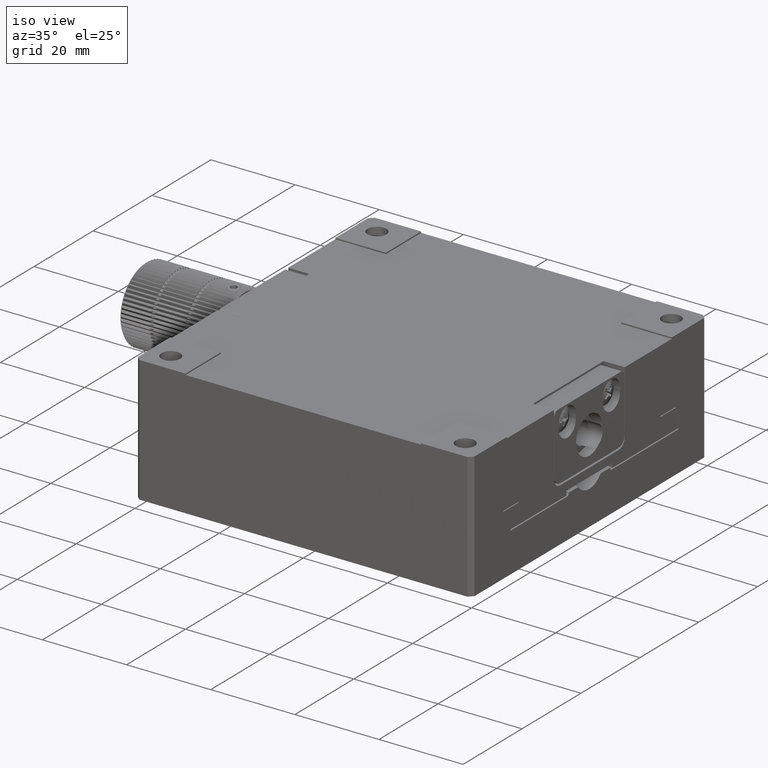
[diagram: clean part render]
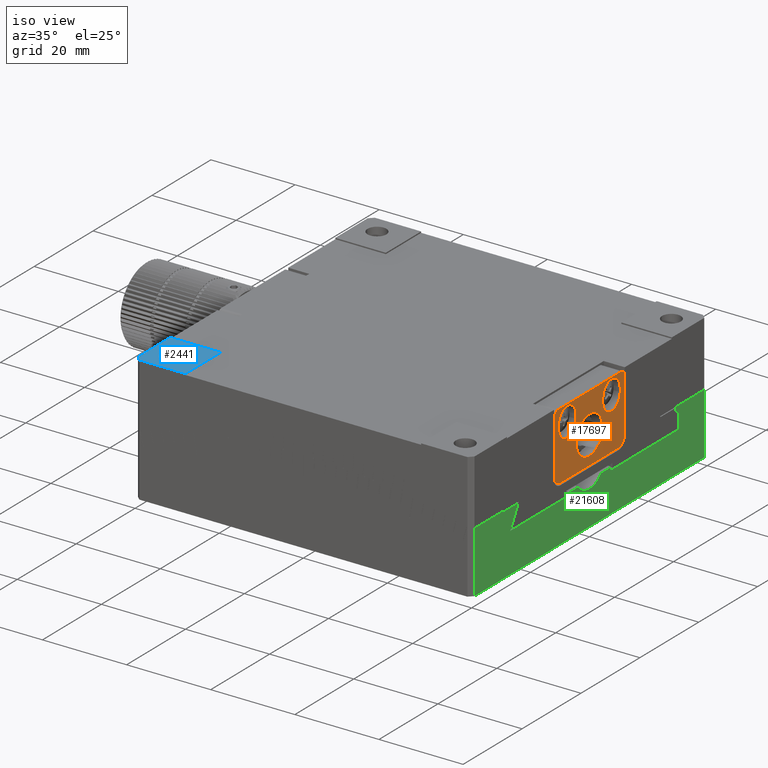
[diagram: same view with three faces highlighted in distinct colors, each labeled with its STEP entity id]
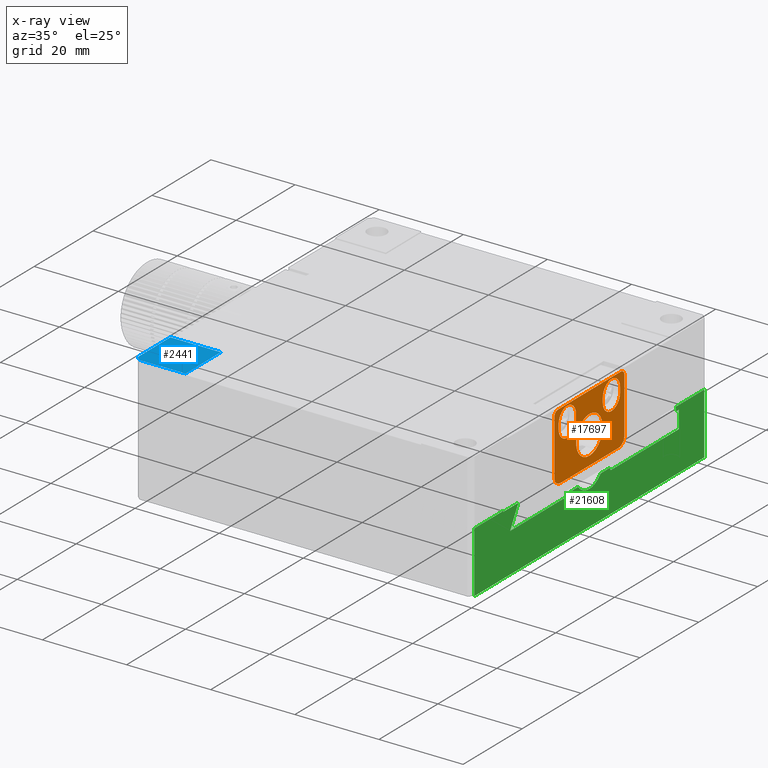
[diagram: x-ray of the same camera — body ghosted, the three highlighted faces saturated]
A machine part, iso view with three faces highlighted in distinct colors.
The next image is the same camera in x-ray (body ghosted, the three faces saturated) — at least one of them is partly hidden behind the body in this view.
Their STEP definitions:

[orange] entity #17697 — the highlighted planar face has unit normal (-1, 0, -0).
#243 = VERTEX_POINT ( 'NONE', #15264 ) ;
#769 = DIRECTION ( 'NONE',  ( -1.000000000000000000, 0.000000000000000000, 0.000000000000000000 ) ) ;
#2941 = VERTEX_POINT ( 'NONE', #73153 ) ;
#3733 = CARTESIAN_POINT ( 'NONE',  ( 40.00000000000003553, -11.90000000000000568, 159.2500000000000000 ) ) ;
#5044 = CARTESIAN_POINT ( 'NONE',  ( 40.00000000000003553, 11.90000000000000213, 158.0499999999999829 ) ) ;
#6259 = DIRECTION ( 'NONE',  ( -0.000000000000000000, -4.614364446098309829E-16, -1.000000000000000000 ) ) ;
#6341 = CARTESIAN_POINT ( 'NONE',  ( 40.00000000000003553, 4.549999999999999822, 155.9500000000000455 ) ) ;
#6952 = DIRECTION ( 'NONE',  ( 0.000000000000000000, 0.000000000000000000, 1.000000000000000000 ) ) ;
#7254 = VERTEX_POINT ( 'NONE', #20465 ) ;
#8002 = CIRCLE ( 'NONE', #31765, 2.950000000000008171 ) ;
#8535 = CARTESIAN_POINT ( 'NONE',  ( 40.00000000000003553, 11.90000000000000213, 143.1500000000000057 ) ) ;
#9416 = CARTESIAN_POINT ( 'NONE',  ( 40.00000000000003553, -4.550000000000003375, 154.9500000000000455 ) ) ;
#10006 = VECTOR ( 'NONE', #44985, 1000.000000000000000 ) ;
#10093 = ORIENTED_EDGE ( 'NONE', *, *, #47680, .T. ) ;
#10255 = EDGE_CURVE ( 'NONE', #2941, #243, #15134, .T. ) ;
#10426 = LINE ( 'NONE', #29841, #42830 ) ;
#11590 = VERTEX_POINT ( 'NONE', #23662 ) ;
#12059 = CARTESIAN_POINT ( 'NONE',  ( 40.00000000000003553, 10.45000000000000107, 154.9500000000000455 ) ) ;
#12080 = CARTESIAN_POINT ( 'NONE',  ( 40.00000000000003553, -10.70000000000000284, 158.0499999999999829 ) ) ;
#12578 = DIRECTION ( 'NONE',  ( -0.000000000000000000, 2.775557561562890735E-17, 1.000000000000000000 ) ) ;
#12872 = DIRECTION ( 'NONE',  ( -0.000000000000000000, 2.775557561562890735E-17, 1.000000000000000000 ) ) ;
#14243 = ORIENTED_EDGE ( 'NONE', *, *, #30781, .F. ) ;
#14854 = ORIENTED_EDGE ( 'NONE', *, *, #74865, .F. ) ;
#15081 = AXIS2_PLACEMENT_3D ( 'NONE', #73401, #53610, #36319 ) ;
#15134 = LINE ( 'NONE', #8535, #19595 ) ;
#15141 = AXIS2_PLACEMENT_3D ( 'NONE', #77445, #77831, #22140 ) ;
#15150 = CARTESIAN_POINT ( 'NONE',  ( 40.00000000000003553, -10.45000000000000107, 154.9500000000000455 ) ) ;
#15264 = CARTESIAN_POINT ( 'NONE',  ( 40.00000000000003553, 9.900000000000002132, 143.1500000000000057 ) ) ;
#16710 = DIRECTION ( 'NONE',  ( -1.000000000000000000, 0.000000000000000000, 0.000000000000000000 ) ) ;
#17520 = CARTESIAN_POINT ( 'NONE',  ( 40.00000000000003553, 9.900000000000002132, 145.1500000000000057 ) ) ;
#17697 = ADVANCED_FACE ( 'NONE', ( #39653, #31866, #45403, #44599 ), #69752, .F. ) ;
#18854 = CARTESIAN_POINT ( 'NONE',  ( 40.00000000000003553, 10.45000000000000284, 154.9500000000000455 ) ) ;
#19595 = VECTOR ( 'NONE', #33719, 1000.000000000000000 ) ;
#19836 = CARTESIAN_POINT ( 'NONE',  ( 40.00000000000003553, -10.45000000000000284, 155.9500000000000455 ) ) ;
#20465 = CARTESIAN_POINT ( 'NONE',  ( 40.00000000000003553, 11.90000000000000213, 145.1500000000000057 ) ) ;
#20931 = ORIENTED_EDGE ( 'NONE', *, *, #56638, .F. ) ;
#20954 = CARTESIAN_POINT ( 'NONE',  ( 40.00000000000003553, -9.900000000000000355, 145.1500000000000057 ) ) ;
#21354 = VERTEX_POINT ( 'NONE', #5044 ) ;
#22140 = DIRECTION ( 'NONE',  ( 0.000000000000000000, 0.000000000000000000, 1.000000000000000000 ) ) ;
#23011 = AXIS2_PLACEMENT_3D ( 'NONE', #32755, #57048, #69429 ) ;
#23652 = DIRECTION ( 'NONE',  ( 1.000000000000000000, 0.000000000000000000, 0.000000000000000000 ) ) ;
#23662 = CARTESIAN_POINT ( 'NONE',  ( 40.00000000000003553, -10.70000000000000284, 159.2500000000000000 ) ) ;
#24208 = AXIS2_PLACEMENT_3D ( 'NONE', #26881, #64372, #51177 ) ;
#24215 = EDGE_LOOP ( 'NONE', ( #14854, #77778, #32258, #39605 ) ) ;
#24927 = ORIENTED_EDGE ( 'NONE', *, *, #69112, .F. ) ;
#24962 = LINE ( 'NONE', #38161, #33203 ) ;
#25645 = CARTESIAN_POINT ( 'NONE',  ( 40.00000000000003553, 0.000000000000000000, 154.2500000000000000 ) ) ;
#25982 = VECTOR ( 'NONE', #12872, 1000.000000000000000 ) ;
#26047 = LINE ( 'NONE', #19836, #10006 ) ;
#26247 = EDGE_CURVE ( 'NONE', #35239, #11590, #10426, .T. ) ;
#26583 = CARTESIAN_POINT ( 'NONE',  ( 40.00000000000003553, 10.70000000000000284, 158.0499999999999829 ) ) ;
#26881 = CARTESIAN_POINT ( 'NONE',  ( 40.00000000000003553, 11.90000000000000213, 159.2500000000000000 ) ) ;
#27295 = VERTEX_POINT ( 'NONE', #25645 ) ;
#28060 = VERTEX_POINT ( 'NONE', #67758 ) ;
#28615 = DIRECTION ( 'NONE',  ( -0.000000000000000000, -1.000000000000000000, 2.775557561562890735E-17 ) ) ;
#29841 = CARTESIAN_POINT ( 'NONE',  ( 40.00000000000003553, 11.90000000000000213, 159.2500000000000000 ) ) ;
#30035 = CARTESIAN_POINT ( 'NONE',  ( 40.00000000000003553, -10.45000000000000107, 155.9500000000000455 ) ) ;
#30259 = ORIENTED_EDGE ( 'NONE', *, *, #32666, .F. ) ;
#30781 = EDGE_CURVE ( 'NONE', #44547, #11590, #34230, .T. ) ;
#31517 = DIRECTION ( 'NONE',  ( 0.000000000000000000, 0.000000000000000000, -1.000000000000000000 ) ) ;
#31765 = AXIS2_PLACEMENT_3D ( 'NONE', #80144, #23652, #48775 ) ;
#31866 = FACE_BOUND ( 'NONE', #24215, .T. ) ;
#32037 = AXIS2_PLACEMENT_3D ( 'NONE', #17520, #16710, #35280 ) ;
#32258 = ORIENTED_EDGE ( 'NONE', *, *, #43294, .F. ) ;
#32333 = EDGE_LOOP ( 'NONE', ( #62795, #76719, #30259, #10093 ) ) ;
#32666 = EDGE_CURVE ( 'NONE', #28060, #49545, #8002, .T. ) ;
#32755 = CARTESIAN_POINT ( 'NONE',  ( 40.00000000000003553, 7.500000000000002665, 154.9500000000000455 ) ) ;
#33203 = VECTOR ( 'NONE', #12578, 1000.000000000000000 ) ;
#33589 = CIRCLE ( 'NONE', #23011, 2.950000000000008171 ) ;
#33719 = DIRECTION ( 'NONE',  ( -0.000000000000000000, 1.000000000000000000, -2.775557561562890735E-17 ) ) ;
#33975 = EDGE_CURVE ( 'NONE', #43439, #61247, #68535, .T. ) ;
#34230 = CIRCLE ( 'NONE', #56617, 1.200000000000006617 ) ;
#34353 = ORIENTED_EDGE ( 'NONE', *, *, #26247, .T. ) ;
#34957 = EDGE_CURVE ( 'NONE', #64550, #55461, #24962, .T. ) ;
#35239 = VERTEX_POINT ( 'NONE', #56084 ) ;
#35280 = DIRECTION ( 'NONE',  ( 0.000000000000000000, 0.000000000000000000, 1.000000000000000000 ) ) ;
#36175 = AXIS2_PLACEMENT_3D ( 'NONE', #20954, #769, #6952 ) ;
#36319 = DIRECTION ( 'NONE',  ( 0.000000000000000000, 0.000000000000000000, -1.000000000000000000 ) ) ;
#37192 = VERTEX_POINT ( 'NONE', #47421 ) ;
#37252 = DIRECTION ( 'NONE',  ( -1.000000000000000000, 0.000000000000000000, 0.000000000000000000 ) ) ;
#37283 = CARTESIAN_POINT ( 'NONE',  ( 40.00000000000003553, -7.500000000000002665, 154.9500000000000455 ) ) ;
#37403 = CIRCLE ( 'NONE', #36175, 2.000000000000001776 ) ;
#37567 = EDGE_LOOP ( 'NONE', ( #14243, #50100, #24927, #64419, #20931, #45571, #65351, #34353 ) ) ;
#38161 = CARTESIAN_POINT ( 'NONE',  ( 40.00000000000003553, 4.549999999999999822, 155.9500000000000455 ) ) ;
#39296 = EDGE_CURVE ( 'NONE', #35239, #21354, #54376, .T. ) ;
#39605 = ORIENTED_EDGE ( 'NONE', *, *, #33975, .T. ) ;
#39653 = FACE_OUTER_BOUND ( 'NONE', #37567, .T. ) ;
#40976 = DIRECTION ( 'NONE',  ( 0.000000000000000000, 0.000000000000000000, 1.000000000000000000 ) ) ;
#41303 = LINE ( 'NONE', #3733, #67364 ) ;
#42830 = VECTOR ( 'NONE', #28615, 1000.000000000000000 ) ;
#43294 = EDGE_CURVE ( 'NONE', #43439, #55461, #57220, .T. ) ;
#43439 = VERTEX_POINT ( 'NONE', #51088 ) ;
#44547 = VERTEX_POINT ( 'NONE', #55153 ) ;
#44599 = FACE_BOUND ( 'NONE', #66436, .T. ) ;
#44985 = DIRECTION ( 'NONE',  ( -0.000000000000000000, -3.441691376337983698E-15, 1.000000000000000000 ) ) ;
#45403 = FACE_BOUND ( 'NONE', #32333, .T. ) ;
#45571 = ORIENTED_EDGE ( 'NONE', *, *, #65516, .T. ) ;
#46863 = ORIENTED_EDGE ( 'NONE', *, *, #70105, .F. ) ;
#47421 = CARTESIAN_POINT ( 'NONE',  ( 40.00000000000003553, -11.90000000000000391, 145.1500000000000057 ) ) ;
#47680 = EDGE_CURVE ( 'NONE', #28060, #72415, #53527, .T. ) ;
#48774 = VECTOR ( 'NONE', #6259, 1000.000000000000000 ) ;
#48775 = DIRECTION ( 'NONE',  ( 0.000000000000000000, 0.000000000000000000, -1.000000000000000000 ) ) ;
#49545 = VERTEX_POINT ( 'NONE', #30035 ) ;
#49966 = CARTESIAN_POINT ( 'NONE',  ( 40.00000000000003553, 11.90000000000000213, 159.2500000000000000 ) ) ;
#50100 = ORIENTED_EDGE ( 'NONE', *, *, #80901, .T. ) ;
#50363 = LINE ( 'NONE', #49966, #25982 ) ;
#50642 = VECTOR ( 'NONE', #78698, 1000.000000000000000 ) ;
#50665 = CIRCLE ( 'NONE', #15141, 4.500000000000003553 ) ;
#51088 = CARTESIAN_POINT ( 'NONE',  ( 40.00000000000003553, 10.45000000000000284, 155.9500000000000455 ) ) ;
#51177 = DIRECTION ( 'NONE',  ( -0.000000000000000000, 0.000000000000000000, 1.000000000000000000 ) ) ;
#51478 = CARTESIAN_POINT ( 'NONE',  ( 40.00000000000003553, 4.549999999999999822, 154.9500000000000455 ) ) ;
#51712 = DIRECTION ( 'NONE',  ( -1.000000000000000000, 0.000000000000000000, 0.000000000000000000 ) ) ;
#53527 = LINE ( 'NONE', #9416, #50642 ) ;
#53610 = DIRECTION ( 'NONE',  ( 1.000000000000000000, 0.000000000000000000, 0.000000000000000000 ) ) ;
#54376 = CIRCLE ( 'NONE', #72816, 1.200000000000006617 ) ;
#55153 = CARTESIAN_POINT ( 'NONE',  ( 40.00000000000003553, -11.90000000000000391, 158.0499999999999829 ) ) ;
#55461 = VERTEX_POINT ( 'NONE', #6341 ) ;
#56084 = CARTESIAN_POINT ( 'NONE',  ( 40.00000000000003553, 10.70000000000000284, 159.2500000000000000 ) ) ;
#56186 = DIRECTION ( 'NONE',  ( 0.000000000000000000, 0.000000000000000000, 1.000000000000000000 ) ) ;
#56617 = AXIS2_PLACEMENT_3D ( 'NONE', #12080, #37252, #56186 ) ;
#56638 = EDGE_CURVE ( 'NONE', #7254, #243, #71485, .T. ) ;
#57048 = DIRECTION ( 'NONE',  ( 1.000000000000000000, 0.000000000000000000, 0.000000000000000000 ) ) ;
#57220 = CIRCLE ( 'NONE', #15081, 2.950000000000008171 ) ;
#58520 = AXIS2_PLACEMENT_3D ( 'NONE', #37283, #69005, #31517 ) ;
#59849 = DIRECTION ( 'NONE',  ( -0.000000000000000000, -2.775557561562890735E-17, -1.000000000000000000 ) ) ;
#61247 = VERTEX_POINT ( 'NONE', #18854 ) ;
#62126 = CARTESIAN_POINT ( 'NONE',  ( 40.00000000000003553, -4.550000000000003375, 154.9500000000000455 ) ) ;
#62510 = CIRCLE ( 'NONE', #58520, 2.950000000000008171 ) ;
#62795 = ORIENTED_EDGE ( 'NONE', *, *, #74260, .F. ) ;
#64095 = EDGE_CURVE ( 'NONE', #80460, #49545, #26047, .T. ) ;
#64372 = DIRECTION ( 'NONE',  ( -1.000000000000000000, 0.000000000000000000, -0.000000000000000000 ) ) ;
#64419 = ORIENTED_EDGE ( 'NONE', *, *, #10255, .T. ) ;
#64550 = VERTEX_POINT ( 'NONE', #51478 ) ;
#65351 = ORIENTED_EDGE ( 'NONE', *, *, #39296, .F. ) ;
#65516 = EDGE_CURVE ( 'NONE', #7254, #21354, #50363, .T. ) ;
#66436 = EDGE_LOOP ( 'NONE', ( #46863 ) ) ;
#67364 = VECTOR ( 'NONE', #59849, 1000.000000000000000 ) ;
#67758 = CARTESIAN_POINT ( 'NONE',  ( 40.00000000000003553, -4.550000000000003375, 155.9500000000000455 ) ) ;
#68535 = LINE ( 'NONE', #12059, #48774 ) ;
#69005 = DIRECTION ( 'NONE',  ( 1.000000000000000000, 0.000000000000000000, 0.000000000000000000 ) ) ;
#69112 = EDGE_CURVE ( 'NONE', #2941, #37192, #37403, .T. ) ;
#69429 = DIRECTION ( 'NONE',  ( 0.000000000000000000, 0.000000000000000000, -1.000000000000000000 ) ) ;
#69752 = PLANE ( 'NONE',  #24208 ) ;
#70105 = EDGE_CURVE ( 'NONE', #27295, #27295, #50665, .T. ) ;
#71485 = CIRCLE ( 'NONE', #32037, 2.000000000000001776 ) ;
#72415 = VERTEX_POINT ( 'NONE', #62126 ) ;
#72816 = AXIS2_PLACEMENT_3D ( 'NONE', #26583, #51712, #40976 ) ;
#73153 = CARTESIAN_POINT ( 'NONE',  ( 40.00000000000003553, -9.900000000000000355, 143.1500000000000057 ) ) ;
#73401 = CARTESIAN_POINT ( 'NONE',  ( 40.00000000000003553, 7.500000000000002665, 155.9500000000000455 ) ) ;
#74260 = EDGE_CURVE ( 'NONE', #80460, #72415, #62510, .T. ) ;
#74865 = EDGE_CURVE ( 'NONE', #64550, #61247, #33589, .T. ) ;
#76719 = ORIENTED_EDGE ( 'NONE', *, *, #64095, .T. ) ;
#77445 = CARTESIAN_POINT ( 'NONE',  ( 40.00000000000003553, 0.000000000000000000, 149.7500000000000000 ) ) ;
#77778 = ORIENTED_EDGE ( 'NONE', *, *, #34957, .T. ) ;
#77831 = DIRECTION ( 'NONE',  ( 1.000000000000000000, -0.000000000000000000, -0.000000000000000000 ) ) ;
#78698 = DIRECTION ( 'NONE',  ( -0.000000000000000000, -2.775557561562890735E-17, -1.000000000000000000 ) ) ;
#80144 = CARTESIAN_POINT ( 'NONE',  ( 40.00000000000003553, -7.500000000000002665, 155.9500000000000455 ) ) ;
#80460 = VERTEX_POINT ( 'NONE', #15150 ) ;
#80901 = EDGE_CURVE ( 'NONE', #44547, #37192, #41303, .T. ) ;

[blue] entity #2441 — the highlighted planar face has unit normal (0, 0, 1).
#2441 = ADVANCED_FACE ( 'NONE', ( #76292, #32633 ), #26397, .T. ) ;
#2473 = CARTESIAN_POINT ( 'NONE',  ( -40.00000000000000000, -39.99999999999997868, 160.0000000000000284 ) ) ;
#2895 = EDGE_CURVE ( 'NONE', #71632, #6200, #10871, .T. ) ;
#4039 = DIRECTION ( 'NONE',  ( 1.000000000000000000, 0.000000000000000000, -0.000000000000000000 ) ) ;
#5675 = EDGE_CURVE ( 'NONE', #38965, #38965, #8595, .T. ) ;
#6200 = VERTEX_POINT ( 'NONE', #62609 ) ;
#8595 = CIRCLE ( 'NONE', #68052, 2.249999999999995115 ) ;
#8724 = CARTESIAN_POINT ( 'NONE',  ( -40.00000000000000000, -38.99999999999995737, 160.0000000000000284 ) ) ;
#10736 = DIRECTION ( 'NONE',  ( -0.000000000000000000, -0.000000000000000000, -1.000000000000000000 ) ) ;
#10871 = LINE ( 'NONE', #54162, #39817 ) ;
#12107 = VECTOR ( 'NONE', #21461, 1000.000000000000000 ) ;
#14199 = EDGE_CURVE ( 'NONE', #44747, #71632, #64006, .T. ) ;
#14776 = CARTESIAN_POINT ( 'NONE',  ( -40.00000000000000000, -38.99999999999995737, 160.0000000000000284 ) ) ;
#14909 = LINE ( 'NONE', #8724, #30014 ) ;
#16102 = CARTESIAN_POINT ( 'NONE',  ( -40.00000000000000000, -27.99999999999999645, 160.0000000000000284 ) ) ;
#16266 = DIRECTION ( 'NONE',  ( -1.000000000000000000, -0.000000000000000000, -0.000000000000000000 ) ) ;
#16465 = ORIENTED_EDGE ( 'NONE', *, *, #71750, .F. ) ;
#16510 = DIRECTION ( 'NONE',  ( 1.000000000000000000, 0.000000000000000000, -0.000000000000000000 ) ) ;
#17425 = AXIS2_PLACEMENT_3D ( 'NONE', #45350, #28039, #4039 ) ;
#20289 = DIRECTION ( 'NONE',  ( 5.782411586589361583E-16, -1.000000000000000000, -0.000000000000000000 ) ) ;
#21461 = DIRECTION ( 'NONE',  ( 0.000000000000000000, 1.000000000000000000, -0.000000000000000000 ) ) ;
#26397 = PLANE ( 'NONE',  #17425 ) ;
#28039 = DIRECTION ( 'NONE',  ( 0.000000000000000000, 0.000000000000000000, 1.000000000000000000 ) ) ;
#30014 = VECTOR ( 'NONE', #59014, 1000.000000000000114 ) ;
#32633 = FACE_BOUND ( 'NONE', #44746, .T. ) ;
#34258 = LINE ( 'NONE', #2473, #12107 ) ;
#36577 = EDGE_LOOP ( 'NONE', ( #46784, #16465, #45341, #55594, #67320 ) ) ;
#38929 = VERTEX_POINT ( 'NONE', #39867 ) ;
#38965 = VERTEX_POINT ( 'NONE', #45908 ) ;
#39817 = VECTOR ( 'NONE', #16266, 1000.000000000000000 ) ;
#39867 = CARTESIAN_POINT ( 'NONE',  ( -40.00000000000000000, -27.99999999999999645, 160.0000000000000284 ) ) ;
#41709 = VERTEX_POINT ( 'NONE', #14776 ) ;
#44746 = EDGE_LOOP ( 'NONE', ( #76819 ) ) ;
#44747 = VERTEX_POINT ( 'NONE', #53037 ) ;
#45341 = ORIENTED_EDGE ( 'NONE', *, *, #62783, .F. ) ;
#45350 = CARTESIAN_POINT ( 'NONE',  ( -40.00000000000000000, -39.99999999999997868, 160.0000000000000284 ) ) ;
#45908 = CARTESIAN_POINT ( 'NONE',  ( -37.25000000000000711, -35.00000000000000000, 160.0000000000000568 ) ) ;
#46428 = VECTOR ( 'NONE', #16510, 1000.000000000000000 ) ;
#46784 = ORIENTED_EDGE ( 'NONE', *, *, #14199, .F. ) ;
#50273 = CARTESIAN_POINT ( 'NONE',  ( -35.00000000000000711, -35.00000000000000000, 160.0000000000000568 ) ) ;
#50813 = CARTESIAN_POINT ( 'NONE',  ( -27.99999999999999645, -39.99999999999998579, 160.0000000000000284 ) ) ;
#53037 = CARTESIAN_POINT ( 'NONE',  ( -28.00000000000000711, -27.99999999999999645, 160.0000000000000284 ) ) ;
#54162 = CARTESIAN_POINT ( 'NONE',  ( 0.000000000000000000, -39.99999999999997158, 160.0000000000000568 ) ) ;
#54859 = EDGE_CURVE ( 'NONE', #41709, #6200, #14909, .T. ) ;
#55594 = ORIENTED_EDGE ( 'NONE', *, *, #54859, .T. ) ;
#56074 = DIRECTION ( 'NONE',  ( -1.000000000000000000, 0.000000000000000000, 0.000000000000000000 ) ) ;
#58118 = VECTOR ( 'NONE', #20289, 1000.000000000000000 ) ;
#59014 = DIRECTION ( 'NONE',  ( 0.7071067811865451302, -0.7071067811865500152, 0.000000000000000000 ) ) ;
#62609 = CARTESIAN_POINT ( 'NONE',  ( -38.99999999999998579, -39.99999999999997868, 160.0000000000000284 ) ) ;
#62783 = EDGE_CURVE ( 'NONE', #41709, #38929, #34258, .T. ) ;
#64006 = LINE ( 'NONE', #50813, #58118 ) ;
#64363 = CARTESIAN_POINT ( 'NONE',  ( -27.99999999999999645, -39.99999999999997868, 160.0000000000000284 ) ) ;
#67320 = ORIENTED_EDGE ( 'NONE', *, *, #2895, .F. ) ;
#68052 = AXIS2_PLACEMENT_3D ( 'NONE', #50273, #10736, #56074 ) ;
#71632 = VERTEX_POINT ( 'NONE', #64363 ) ;
#71750 = EDGE_CURVE ( 'NONE', #38929, #44747, #80003, .T. ) ;
#76292 = FACE_OUTER_BOUND ( 'NONE', #36577, .T. ) ;
#76819 = ORIENTED_EDGE ( 'NONE', *, *, #5675, .T. ) ;
#80003 = LINE ( 'NONE', #16102, #46428 ) ;

[green] entity #21608 — the highlighted planar face has unit normal (1, -0, 0).
#144 = CARTESIAN_POINT ( 'NONE',  ( 39.99999999999997158, 38.99999999999997158, 155.0000000000000853 ) ) ;
#250 = B_SPLINE_CURVE_WITH_KNOTS ( 'NONE', 3,
 ( #21304, #28326, #15540, #65790, #3128, #78197, #33319, #14722, #46441, #46843, #8947, #58020, #71607, #64611, #2722, #39896, #58437, #15129 ),
 .UNSPECIFIED., .F., .F.,
 ( 4, 2, 2, 2, 2, 2, 2, 2, 4 ),
 ( -0.004394666948832578676, -0.003296143860405708996, -0.002197620771978839749, -0.001099097683551969636, -5.745951250990879999E-07, 0.001097948493301772327, 0.002196471581728642875, 0.003294994670155513422, 0.004393517758582383970 ),
 .UNSPECIFIED. ) ;
#823 = CARTESIAN_POINT ( 'NONE',  ( 39.99999999999993605, 7.500000000000000000, 139.3735986476636697 ) ) ;
#1183 = LINE ( 'NONE', #81227, #81338 ) ;
#1344 = LINE ( 'NONE', #144, #16891 ) ;
#2379 = CARTESIAN_POINT ( 'NONE',  ( 39.99999999999997158, -7.365139774430703667, 139.3735986476635276 ) ) ;
#2722 = CARTESIAN_POINT ( 'NONE',  ( 39.99999999999992895, -2.771501095558436933, 138.9807267235426878 ) ) ;
#3128 = CARTESIAN_POINT ( 'NONE',  ( 40.00000000000000000, 2.464756184722431964, 138.7851955642208281 ) ) ;
#3707 = CARTESIAN_POINT ( 'NONE',  ( 39.99999999999997158, 38.99999999999997158, 144.5683229480095804 ) ) ;
#3750 = ORIENTED_EDGE ( 'NONE', *, *, #71326, .T. ) ;
#4190 = VERTEX_POINT ( 'NONE', #44791 ) ;
#4695 = VECTOR ( 'NONE', #75783, 1000.000000000000000 ) ;
#5446 = LINE ( 'NONE', #30237, #34814 ) ;
#6074 = EDGE_CURVE ( 'NONE', #63316, #55485, #9928, .T. ) ;
#6714 = VERTEX_POINT ( 'NONE', #28460 ) ;
#6773 = CARTESIAN_POINT ( 'NONE',  ( 39.99999999999997158, -40.00000000000004263, 139.9977142670551018 ) ) ;
#8156 = CARTESIAN_POINT ( 'NONE',  ( 39.99999999999997158, -24.20000000000000639, 144.2088657175621904 ) ) ;
#8947 = CARTESIAN_POINT ( 'NONE',  ( 39.99999999999995026, -0.7351958295581382252, 138.1672213096129269 ) ) ;
#9005 = LINE ( 'NONE', #52291, #33538 ) ;
#9131 = PLANE ( 'NONE',  #47813 ) ;
#9253 = EDGE_CURVE ( 'NONE', #51031, #47156, #1344, .T. ) ;
#9301 = LINE ( 'NONE', #54619, #52011 ) ;
#9928 = LINE ( 'NONE', #72594, #12664 ) ;
#10009 = CARTESIAN_POINT ( 'NONE',  ( 39.99999999999997158, -40.00000000000004263, 139.3735986476636413 ) ) ;
#10085 = EDGE_CURVE ( 'NONE', #63541, #53574, #44435, .T. ) ;
#10863 = ORIENTED_EDGE ( 'NONE', *, *, #20087, .T. ) ;
#11660 = DIRECTION ( 'NONE',  ( -0.000000000000000000, -1.000000000000000000, -0.000000000000000000 ) ) ;
#12031 = DIRECTION ( 'NONE',  ( -0.000000000000000000, -1.000000000000000000, -0.000000000000000000 ) ) ;
#12664 = VECTOR ( 'NONE', #35511, 1000.000000000000000 ) ;
#13514 = DIRECTION ( 'NONE',  ( -0.000000000000000000, 0.000000000000000000, -1.000000000000000000 ) ) ;
#13544 = EDGE_CURVE ( 'NONE', #71869, #71653, #250, .T. ) ;
#13553 = VERTEX_POINT ( 'NONE', #70810 ) ;
#13630 = ORIENTED_EDGE ( 'NONE', *, *, #58556, .T. ) ;
#14690 = DIRECTION ( 'NONE',  ( 1.972152263052529514E-31, 0.000000000000000000, -1.000000000000000000 ) ) ;
#14722 = CARTESIAN_POINT ( 'NONE',  ( 40.00000000000000711, 0.7404985546688707121, 138.1677551223680780 ) ) ;
#15129 = CARTESIAN_POINT ( 'NONE',  ( 39.99999999999997158, -3.841874542459704056, 139.9977142670551018 ) ) ;
#15540 = CARTESIAN_POINT ( 'NONE',  ( 40.00000000000002132, 3.350938572547587757, 139.4480138475339857 ) ) ;
#16096 = ORIENTED_EDGE ( 'NONE', *, *, #48402, .T. ) ;
#16478 = VECTOR ( 'NONE', #27908, 1000.000000000000000 ) ;
#16891 = VECTOR ( 'NONE', #38928, 1000.000000000000000 ) ;
#17859 = CARTESIAN_POINT ( 'NONE',  ( 40.00000000000000000, 6.999999999999999112, 139.8937096512920846 ) ) ;
#18190 = EDGE_CURVE ( 'NONE', #51031, #71711, #9005, .T. ) ;
#18463 = CARTESIAN_POINT ( 'NONE',  ( 39.99999999999997158, -29.20000000000002771, 0.000000000000000000 ) ) ;
#18946 = CARTESIAN_POINT ( 'NONE',  ( 39.99999999999997158, -29.20000000000001705, 144.3607980027819906 ) ) ;
#20087 = EDGE_CURVE ( 'NONE', #37984, #71711, #81164, .T. ) ;
#21002 = CARTESIAN_POINT ( 'NONE',  ( 40.00000000000007105, 7.234309586261413294, 139.4327607226618397 ) ) ;
#21304 = CARTESIAN_POINT ( 'NONE',  ( 39.99999999999997868, 3.841874542459712494, 139.9977142670551018 ) ) ;
#21430 = VERTEX_POINT ( 'NONE', #54125 ) ;
#21504 = CARTESIAN_POINT ( 'NONE',  ( 39.99999999999997158, -40.00000000000004263, 155.0000000000000853 ) ) ;
#21608 = ADVANCED_FACE ( 'NONE', ( #26478 ), #9131, .T. ) ;
#21976 = LINE ( 'NONE', #10009, #58695 ) ;
#22166 = VECTOR ( 'NONE', #13514, 1000.000000000000000 ) ;
#22869 = EDGE_CURVE ( 'NONE', #47156, #72238, #5446, .T. ) ;
#22943 = VERTEX_POINT ( 'NONE', #24045 ) ;
#23778 = EDGE_CURVE ( 'NONE', #21430, #67780, #52627, .T. ) ;
#23799 = EDGE_CURVE ( 'NONE', #4190, #6714, #77788, .T. ) ;
#24045 = CARTESIAN_POINT ( 'NONE',  ( 39.99999999999997158, -24.20000000000000639, 144.3607980027819906 ) ) ;
#24302 = VECTOR ( 'NONE', #14690, 1000.000000000000000 ) ;
#24737 = DIRECTION ( 'NONE',  ( -0.000000000000000000, -1.000000000000000000, -0.000000000000000000 ) ) ;
#26048 = CARTESIAN_POINT ( 'NONE',  ( 39.99999999999997158, -39.00000000000003553, 130.0000000000000568 ) ) ;
#26478 = FACE_OUTER_BOUND ( 'NONE', #35066, .T. ) ;
#26904 = DIRECTION ( 'NONE',  ( 1.972152263052529514E-31, 0.000000000000000000, -1.000000000000000000 ) ) ;
#27476 = CARTESIAN_POINT ( 'NONE',  ( 39.99999999999997158, -25.09643035960639423, 142.5975807256799897 ) ) ;
#27908 = DIRECTION ( 'NONE',  ( 0.000000000000000000, 1.000000000000000000, 0.000000000000000000 ) ) ;
#28326 = CARTESIAN_POINT ( 'NONE',  ( 39.99999999999999289, 3.609777735738850968, 139.7079113212735137 ) ) ;
#28460 = CARTESIAN_POINT ( 'NONE',  ( 39.99999999999997158, -26.88675134594813088, 139.3735986476635844 ) ) ;
#29176 = EDGE_CURVE ( 'NONE', #13553, #71869, #70697, .T. ) ;
#29810 = CARTESIAN_POINT ( 'NONE',  ( 39.99999999999997158, -40.00000000000004263, 139.9977142670551018 ) ) ;
#30110 = LINE ( 'NONE', #75010, #39009 ) ;
#30237 = CARTESIAN_POINT ( 'NONE',  ( 39.99999999999997158, -40.00000000000004263, 144.5683229480096088 ) ) ;
#30697 = ORIENTED_EDGE ( 'NONE', *, *, #13544, .T. ) ;
#31436 = LINE ( 'NONE', #29810, #80372 ) ;
#31830 = VECTOR ( 'NONE', #56830, 1000.000000000000000 ) ;
#32165 = CARTESIAN_POINT ( 'NONE',  ( 39.99999999999993605, 7.500000000000000000, 139.3735986476636697 ) ) ;
#33319 = CARTESIAN_POINT ( 'NONE',  ( 40.00000000000001421, 1.461941963624934226, 138.3373294724980269 ) ) ;
#33349 = EDGE_CURVE ( 'NONE', #36876, #13553, #36216, .T. ) ;
#33538 = VECTOR ( 'NONE', #47285, 1000.000000000000000 ) ;
#33646 = ORIENTED_EDGE ( 'NONE', *, *, #22869, .T. ) ;
#33764 = CARTESIAN_POINT ( 'NONE',  ( 39.99999999999994316, -7.051407891599468236, 139.6268195341245644 ) ) ;
#33956 = ORIENTED_EDGE ( 'NONE', *, *, #18190, .F. ) ;
#34814 = VECTOR ( 'NONE', #11660, 1000.000000000000000 ) ;
#35022 = CARTESIAN_POINT ( 'NONE',  ( 39.99999999999997158, 30.40000000000003411, 139.3735986476636697 ) ) ;
#35066 = EDGE_LOOP ( 'NONE', ( #16096, #55402, #47043, #10863, #33956, #52053, #33646, #42204, #52045, #42227, #3750, #78348, #71748, #68811, #30697, #13630, #47910, #75511, #78593, #40512, #69910 ) ) ;
#35346 = VECTOR ( 'NONE', #70276, 1000.000000000000000 ) ;
#35485 = CARTESIAN_POINT ( 'NONE',  ( 39.99999999999997868, 3.841874542459712494, 139.9977142670551018 ) ) ;
#35511 = DIRECTION ( 'NONE',  ( -0.000000000000000000, 0.000000000000000000, -1.000000000000000000 ) ) ;
#36216 = LINE ( 'NONE', #66269, #48830 ) ;
#36876 = VERTEX_POINT ( 'NONE', #17859 ) ;
#37691 = VERTEX_POINT ( 'NONE', #35022 ) ;
#37984 = VERTEX_POINT ( 'NONE', #53731 ) ;
#38234 = LINE ( 'NONE', #63358, #24302 ) ;
#38928 = DIRECTION ( 'NONE',  ( -1.972152263052529514E-31, -0.000000000000000000, 1.000000000000000000 ) ) ;
#39009 = VECTOR ( 'NONE', #24737, 1000.000000000000000 ) ;
#39188 = CARTESIAN_POINT ( 'NONE',  ( 39.99999999999992895, 7.000000000000022204, 139.7590944839067504 ) ) ;
#39896 = CARTESIAN_POINT ( 'NONE',  ( 39.99999999999992184, -3.349514909959903530, 139.4462399808897146 ) ) ;
#40090 = DIRECTION ( 'NONE',  ( 1.000000000000000000, -0.000000000000000000, 1.972152263052529514E-31 ) ) ;
#40348 = CARTESIAN_POINT ( 'NONE',  ( 39.99999999999997158, -7.500000000000000000, 139.3735986476635560 ) ) ;
#40512 = ORIENTED_EDGE ( 'NONE', *, *, #78812, .T. ) ;
#40692 = DIRECTION ( 'NONE',  ( -0.000000000000000000, -1.000000000000000000, -0.000000000000000000 ) ) ;
#40953 = DIRECTION ( 'NONE',  ( -0.000000000000000000, -1.000000000000000000, -0.000000000000000000 ) ) ;
#41847 = CARTESIAN_POINT ( 'NONE',  ( 39.99999999999997158, -29.20000000000003126, 144.5683229480096372 ) ) ;
#42204 = ORIENTED_EDGE ( 'NONE', *, *, #78142, .T. ) ;
#42227 = ORIENTED_EDGE ( 'NONE', *, *, #48256, .T. ) ;
#43476 = EDGE_CURVE ( 'NONE', #22943, #70106, #1183, .T. ) ;
#44191 = EDGE_CURVE ( 'NONE', #73474, #36876, #49969, .T. ) ;
#44435 = LINE ( 'NONE', #18463, #22166 ) ;
#44791 = CARTESIAN_POINT ( 'NONE',  ( 39.99999999999997158, -7.500000000000000000, 139.3735986476635560 ) ) ;
#45983 = CARTESIAN_POINT ( 'NONE',  ( 39.99999999999997158, -6.999999999999999112, 139.9977142670551018 ) ) ;
#46441 = CARTESIAN_POINT ( 'NONE',  ( 40.00000000000001421, 0.3721183128334326629, 138.1247713813218070 ) ) ;
#46843 = CARTESIAN_POINT ( 'NONE',  ( 40.00000000000001421, -0.3709522903309231956, 138.1246811775970400 ) ) ;
#47043 = ORIENTED_EDGE ( 'NONE', *, *, #66008, .T. ) ;
#47156 = VERTEX_POINT ( 'NONE', #3707 ) ;
#47285 = DIRECTION ( 'NONE',  ( -0.000000000000000000, -1.000000000000000000, -0.000000000000000000 ) ) ;
#47813 = AXIS2_PLACEMENT_3D ( 'NONE', #21504, #40090, #26904 ) ;
#47910 = ORIENTED_EDGE ( 'NONE', *, *, #6074, .T. ) ;
#48107 = CARTESIAN_POINT ( 'NONE',  ( 39.99999999999994316, -6.999999999999987566, 139.7590087103976089 ) ) ;
#48256 = EDGE_CURVE ( 'NONE', #67780, #37691, #38234, .T. ) ;
#48402 = EDGE_CURVE ( 'NONE', #22943, #53574, #9301, .T. ) ;
#48830 = VECTOR ( 'NONE', #60503, 1000.000000000000000 ) ;
#48916 = CARTESIAN_POINT ( 'NONE',  ( 39.99999999999997158, 29.40000000000003766, 144.5683229480095804 ) ) ;
#49969 = B_SPLINE_CURVE_WITH_KNOTS ( 'NONE', 3,
 ( #823, #77504, #21002, #58122, #39188, #57721 ),
 .UNSPECIFIED., .F., .F.,
 ( 4, 2, 4 ),
 ( 4.336808689942017736E-18, 0.0003984371603162539994, 0.0007968743206325036620 ),
 .UNSPECIFIED. ) ;
#51031 = VERTEX_POINT ( 'NONE', #63377 ) ;
#52011 = VECTOR ( 'NONE', #53793, 1000.000000000000000 ) ;
#52045 = ORIENTED_EDGE ( 'NONE', *, *, #23778, .T. ) ;
#52053 = ORIENTED_EDGE ( 'NONE', *, *, #9253, .T. ) ;
#52175 = CARTESIAN_POINT ( 'NONE',  ( 39.99999999999997158, -25.99204208941209160, 140.9858399636450201 ) ) ;
#52291 = CARTESIAN_POINT ( 'NONE',  ( 39.99999999999997158, -40.00000000000004263, 130.0000000000000568 ) ) ;
#52627 = LINE ( 'NONE', #66603, #16478 ) ;
#53574 = VERTEX_POINT ( 'NONE', #18946 ) ;
#53731 = CARTESIAN_POINT ( 'NONE',  ( 39.99999999999997158, -39.00000000000003553, 144.5683229480096372 ) ) ;
#53793 = DIRECTION ( 'NONE',  ( -0.000000000000000000, -1.000000000000000000, -0.000000000000000000 ) ) ;
#54125 = CARTESIAN_POINT ( 'NONE',  ( 39.99999999999997158, 29.40000000000003766, 143.5304845668682390 ) ) ;
#54191 = B_SPLINE_CURVE_WITH_KNOTS ( 'NONE', 3,
 ( #77744, #52175, #27476, #69929 ),
 .UNSPECIFIED., .F., .F.,
 ( 4, 4 ),
 ( 3.103167691559091397E-17, 0.005531585706847579921 ),
 .UNSPECIFIED. ) ;
#54619 = CARTESIAN_POINT ( 'NONE',  ( 39.99999999999997158, -40.00000000000004263, 144.3607980027819906 ) ) ;
#55402 = ORIENTED_EDGE ( 'NONE', *, *, #10085, .F. ) ;
#55485 = VERTEX_POINT ( 'NONE', #65656 ) ;
#56024 = LINE ( 'NONE', #75809, #31830 ) ;
#56240 = B_SPLINE_CURVE_WITH_KNOTS ( 'NONE', 3,
 ( #79470, #48107, #33764, #58881, #2379, #40348 ),
 .UNSPECIFIED., .F., .F.,
 ( 4, 2, 4 ),
 ( 8.441528768080324345E-17, 0.0003984434816231500055, 0.0007968869632462156601 ),
 .UNSPECIFIED. ) ;
#56830 = DIRECTION ( 'NONE',  ( -0.000000000000000000, 0.000000000000000000, -1.000000000000000000 ) ) ;
#57721 = CARTESIAN_POINT ( 'NONE',  ( 40.00000000000000000, 6.999999999999999112, 139.8937096512920846 ) ) ;
#58020 = CARTESIAN_POINT ( 'NONE',  ( 39.99999999999993605, -1.449663515578864859, 138.3337481782045586 ) ) ;
#58122 = CARTESIAN_POINT ( 'NONE',  ( 40.00000000000004263, 7.051894115741576208, 139.6261664461969758 ) ) ;
#58437 = CARTESIAN_POINT ( 'NONE',  ( 40.00000000000004263, -3.609747695182818017, 139.7078738117457419 ) ) ;
#58556 = EDGE_CURVE ( 'NONE', #71653, #63316, #31436, .T. ) ;
#58695 = VECTOR ( 'NONE', #40953, 1000.000000000000000 ) ;
#58881 = CARTESIAN_POINT ( 'NONE',  ( 39.99999999999992184, -7.234300196244703329, 139.4326334810444905 ) ) ;
#59220 = CARTESIAN_POINT ( 'NONE',  ( 39.99999999999997158, -40.00000000000004263, 139.3735986476635844 ) ) ;
#60503 = DIRECTION ( 'NONE',  ( -0.000000000000000000, 0.000000000000000000, 1.000000000000000000 ) ) ;
#61778 = CARTESIAN_POINT ( 'NONE',  ( 39.99999999999997158, -39.00000000000003553, 155.0000000000000853 ) ) ;
#63316 = VERTEX_POINT ( 'NONE', #45983 ) ;
#63358 = CARTESIAN_POINT ( 'NONE',  ( 39.99999999999997158, 30.40000000000003055, 155.0000000000000853 ) ) ;
#63377 = CARTESIAN_POINT ( 'NONE',  ( 39.99999999999997158, 38.99999999999997158, 130.0000000000000568 ) ) ;
#63541 = VERTEX_POINT ( 'NONE', #41847 ) ;
#63963 = CARTESIAN_POINT ( 'NONE',  ( 39.99999999999997158, -3.841874542459704056, 139.9977142670551018 ) ) ;
#64185 = CARTESIAN_POINT ( 'NONE',  ( 39.99999999999997158, 30.40000000000003411, 143.5304845668682390 ) ) ;
#64611 = CARTESIAN_POINT ( 'NONE',  ( 39.99999999999994316, -2.461319737666110008, 138.7831731008128315 ) ) ;
#65656 = CARTESIAN_POINT ( 'NONE',  ( 39.99999999999994316, -6.999999999999999112, 139.8937096512920846 ) ) ;
#65790 = CARTESIAN_POINT ( 'NONE',  ( 40.00000000000001421, 2.780428035292022759, 138.9873001634032903 ) ) ;
#66008 = EDGE_CURVE ( 'NONE', #63541, #37984, #30110, .T. ) ;
#66269 = CARTESIAN_POINT ( 'NONE',  ( 39.99999999999997158, 7.000000000000000000, 0.000000000000000000 ) ) ;
#66603 = CARTESIAN_POINT ( 'NONE',  ( 39.99999999999997158, 40.00000000000003553, 143.5304845668682390 ) ) ;
#67780 = VERTEX_POINT ( 'NONE', #64185 ) ;
#68811 = ORIENTED_EDGE ( 'NONE', *, *, #29176, .T. ) ;
#69370 = EDGE_CURVE ( 'NONE', #55485, #4190, #56240, .T. ) ;
#69910 = ORIENTED_EDGE ( 'NONE', *, *, #43476, .F. ) ;
#69929 = CARTESIAN_POINT ( 'NONE',  ( 39.99999999999997158, -24.20000000000000639, 144.2088657175621904 ) ) ;
#70106 = VERTEX_POINT ( 'NONE', #8156 ) ;
#70276 = DIRECTION ( 'NONE',  ( -0.000000000000000000, -1.000000000000000000, -0.000000000000000000 ) ) ;
#70697 = LINE ( 'NONE', #6773, #35346 ) ;
#70810 = CARTESIAN_POINT ( 'NONE',  ( 39.99999999999997158, 6.999999999999999112, 139.9977142670551018 ) ) ;
#71326 = EDGE_CURVE ( 'NONE', #37691, #73474, #21976, .T. ) ;
#71607 = CARTESIAN_POINT ( 'NONE',  ( 39.99999999999993605, -1.802699578714933581, 138.4600287461916537 ) ) ;
#71653 = VERTEX_POINT ( 'NONE', #63963 ) ;
#71711 = VERTEX_POINT ( 'NONE', #26048 ) ;
#71748 = ORIENTED_EDGE ( 'NONE', *, *, #33349, .T. ) ;
#71869 = VERTEX_POINT ( 'NONE', #35485 ) ;
#72238 = VERTEX_POINT ( 'NONE', #48916 ) ;
#72594 = CARTESIAN_POINT ( 'NONE',  ( 39.99999999999997158, -7.000000000000000000, 0.000000000000000000 ) ) ;
#73474 = VERTEX_POINT ( 'NONE', #32165 ) ;
#75010 = CARTESIAN_POINT ( 'NONE',  ( 39.99999999999997158, -40.00000000000004263, 144.5683229480096372 ) ) ;
#75019 = DIRECTION ( 'NONE',  ( -0.000000000000000000, 0.000000000000000000, -1.000000000000000000 ) ) ;
#75511 = ORIENTED_EDGE ( 'NONE', *, *, #69370, .T. ) ;
#75783 = DIRECTION ( 'NONE',  ( 1.972152263052529514E-31, 0.000000000000000000, -1.000000000000000000 ) ) ;
#75809 = CARTESIAN_POINT ( 'NONE',  ( 39.99999999999997158, 29.40000000000003766, 0.000000000000000000 ) ) ;
#76875 = VECTOR ( 'NONE', #40692, 1000.000000000000000 ) ;
#77504 = CARTESIAN_POINT ( 'NONE',  ( 39.99999999999990763, 7.365242796154543470, 139.3735986476637265 ) ) ;
#77744 = CARTESIAN_POINT ( 'NONE',  ( 39.99999999999997158, -26.88675134594813088, 139.3735986476635844 ) ) ;
#77788 = LINE ( 'NONE', #59220, #76875 ) ;
#78142 = EDGE_CURVE ( 'NONE', #72238, #21430, #56024, .T. ) ;
#78197 = CARTESIAN_POINT ( 'NONE',  ( 39.99999999999998579, 1.806490653359276610, 138.4615560554293836 ) ) ;
#78348 = ORIENTED_EDGE ( 'NONE', *, *, #44191, .T. ) ;
#78593 = ORIENTED_EDGE ( 'NONE', *, *, #23799, .T. ) ;
#78812 = EDGE_CURVE ( 'NONE', #6714, #70106, #54191, .T. ) ;
#79470 = CARTESIAN_POINT ( 'NONE',  ( 39.99999999999994316, -6.999999999999999112, 139.8937096512920846 ) ) ;
#80372 = VECTOR ( 'NONE', #12031, 1000.000000000000000 ) ;
#81164 = LINE ( 'NONE', #61778, #4695 ) ;
#81227 = CARTESIAN_POINT ( 'NONE',  ( 39.99999999999997158, -24.20000000000001350, -1.696613953506611715E-12 ) ) ;
#81338 = VECTOR ( 'NONE', #75019, 1000.000000000000000 ) ;